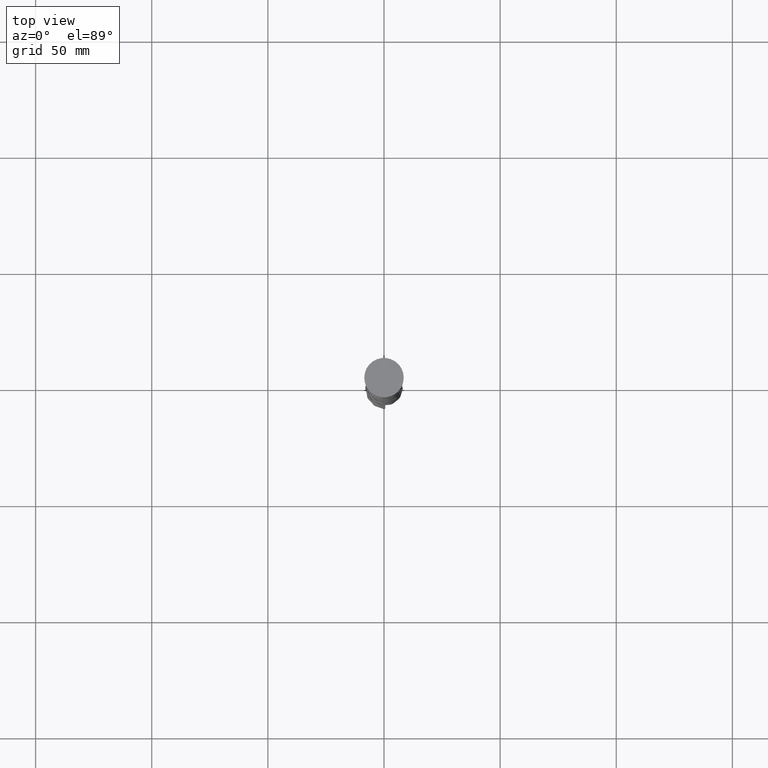
[diagram: clean part render]
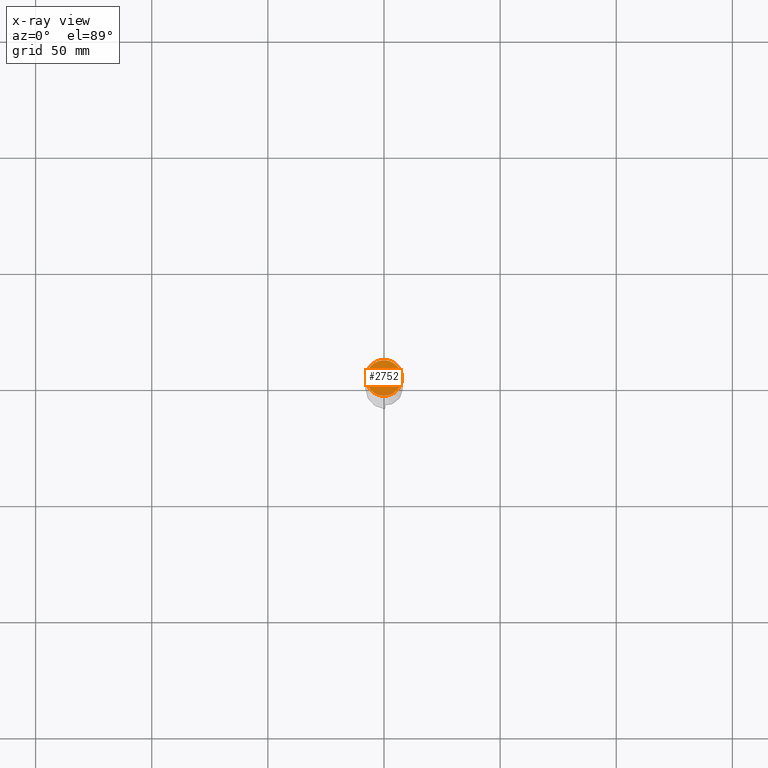
[diagram: x-ray — body ghosted, one internal face saturated and labeled with its STEP entity id]
A machine part, top view, then the same camera in x-ray: the body is ghosted and one INTERNAL B-rep face — a face not visible from any outside direction — is saturated and labeled: STEP entity #2752.
In plain terms, the highlighted planar face has unit normal (0, 0, -1).
Its self-contained STEP definition (entity closure, byte-faithful):
#355 = ORIENTED_EDGE ( 'NONE', *, *, #4055, .T. ) ;
#432 = ORIENTED_EDGE ( 'NONE', *, *, #2294, .T. ) ;
#504 = AXIS2_PLACEMENT_3D ( 'NONE', #2872, #1492, #3797 ) ;
#745 = DIRECTION ( 'NONE',  ( -0.000000000000000000, -0.000000000000000000, 1.000000000000000000 ) ) ;
#998 = VERTEX_POINT ( 'NONE', #3208 ) ;
#1315 = FACE_OUTER_BOUND ( 'NONE', #2416, .T. ) ;
#1492 = DIRECTION ( 'NONE',  ( 0.000000000000000000, 0.000000000000000000, -1.000000000000000000 ) ) ;
#1832 = CIRCLE ( 'NONE', #2228, 7.700000000000001954 ) ;
#2046 = CARTESIAN_POINT ( 'NONE',  ( -7.700000000000001954, 0.000000000000000000, -12.00000000000000000 ) ) ;
#2228 = AXIS2_PLACEMENT_3D ( 'NONE', #3948, #745, #2316 ) ;
#2248 = DIRECTION ( 'NONE',  ( -1.000000000000000000, 0.000000000000000000, 0.000000000000000000 ) ) ;
#2294 = EDGE_CURVE ( 'NONE', #998, #2941, #2868, .T. ) ;
#2316 = DIRECTION ( 'NONE',  ( -1.000000000000000000, 0.000000000000000000, 0.000000000000000000 ) ) ;
#2416 = EDGE_LOOP ( 'NONE', ( #355, #432 ) ) ;
#2752 = ADVANCED_FACE ( 'NONE', ( #1315 ), #3503, .F. ) ;
#2868 = CIRCLE ( 'NONE', #3348, 7.700000000000001954 ) ;
#2872 = CARTESIAN_POINT ( 'NONE',  ( 0.000000000000000000, 0.000000000000000000, -12.00000000000000000 ) ) ;
#2880 = DIRECTION ( 'NONE',  ( -0.000000000000000000, -0.000000000000000000, 1.000000000000000000 ) ) ;
#2941 = VERTEX_POINT ( 'NONE', #2046 ) ;
#3208 = CARTESIAN_POINT ( 'NONE',  ( 7.700000000000001954, 9.613477373306725302E-16, -12.00000000000000000 ) ) ;
#3348 = AXIS2_PLACEMENT_3D ( 'NONE', #3600, #2880, #2248 ) ;
#3503 = PLANE ( 'NONE',  #504 ) ;
#3600 = CARTESIAN_POINT ( 'NONE',  ( 0.000000000000000000, 0.000000000000000000, -12.00000000000000000 ) ) ;
#3797 = DIRECTION ( 'NONE',  ( -1.000000000000000000, 0.000000000000000000, -0.000000000000000000 ) ) ;
#3948 = CARTESIAN_POINT ( 'NONE',  ( 0.000000000000000000, 0.000000000000000000, -12.00000000000000000 ) ) ;
#4055 = EDGE_CURVE ( 'NONE', #2941, #998, #1832, .T. ) ;